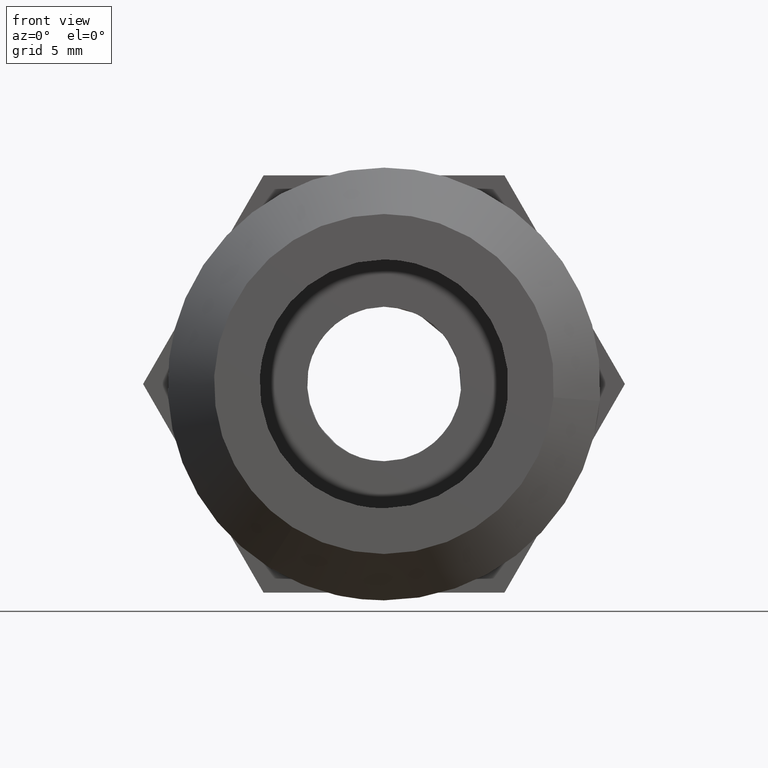
[diagram: clean part render]
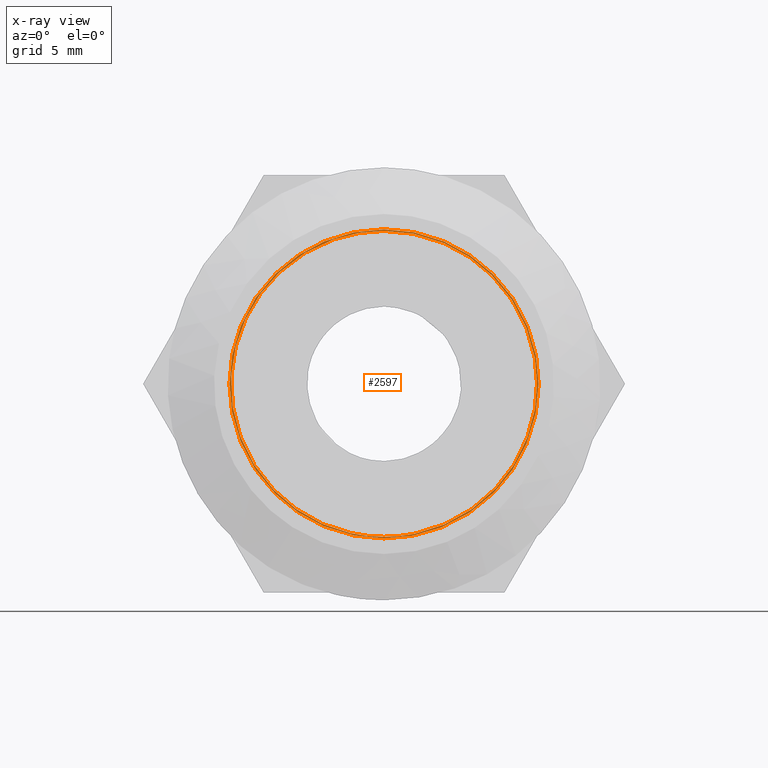
[diagram: x-ray — body ghosted, one internal face saturated and labeled with its STEP entity id]
A machine part, front view, then the same camera in x-ray: the body is ghosted and one INTERNAL B-rep face — a face not visible from any outside direction — is saturated and labeled: STEP entity #2597.
In plain terms, the highlighted face is a freeform B-spline surface patch.
Its self-contained STEP definition (entity closure, byte-faithful):
#1036=CARTESIAN_POINT('',(13.000000617466640,-9.764228942748170,-1.633965257896121));
#1037=VERTEX_POINT('',#1036);
#1043=CARTESIAN_POINT('',(13.000000617466640,0.0,-9.900000470224791));
#1044=VERTEX_POINT('',#1043);
#1045=CARTESIAN_POINT('',(13.000000617466645,-9.764228942748170,-1.633965257896120));
#1046=CARTESIAN_POINT('',(13.000000617466641,-8.380974367638796,-9.900000470224789));
#1047=CARTESIAN_POINT('',(13.000000617466640,0.0,-9.900000470224791));
#1055=(BOUNDED_CURVE()B_SPLINE_CURVE(2,(#1045,#1046,#1047),.UNSPECIFIED.,.F.,.U.)B_SPLINE_CURVE_WITH_KNOTS((3,3),(0.778400414016040,1.0),.UNSPECIFIED.)CURVE()GEOMETRIC_REPRESENTATION_ITEM()RATIONAL_B_SPLINE_CURVE((0.941013461540086,0.740379935893718,1.0))REPRESENTATION_ITEM(''));
#1056=EDGE_CURVE('',#1037,#1044,#1055,.T.);
#1058=CARTESIAN_POINT('',(13.000000617466640,2.189729719311406,-9.654796376246402));
#1059=VERTEX_POINT('',#1058);
#1060=CARTESIAN_POINT('',(13.000000617466640,0.0,-9.900000470224791));
#1061=CARTESIAN_POINT('',(13.000000617466640,1.108593733857280,-9.900000470224791));
#1062=CARTESIAN_POINT('',(13.000000617466641,2.189729719311406,-9.654796376246400));
#1070=(BOUNDED_CURVE()B_SPLINE_CURVE(2,(#1060,#1061,#1062),.UNSPECIFIED.,.F.,.U.)B_SPLINE_CURVE_WITH_KNOTS((3,3),(0.0,0.037835668916601),.UNSPECIFIED.)CURVE()GEOMETRIC_REPRESENTATION_ITEM()RATIONAL_B_SPLINE_CURVE((1.0,0.955672756580227,0.924762720408582))REPRESENTATION_ITEM(''));
#1071=EDGE_CURVE('',#1044,#1059,#1070,.T.);
#1119=CARTESIAN_POINT('',(13.000000617466640,0.0,9.900000470224791));
#1120=VERTEX_POINT('',#1119);
#1121=CARTESIAN_POINT('',(13.000000617466641,2.189729719311406,-9.654796376246400));
#1122=CARTESIAN_POINT('',(13.000000617466640,9.900000470224791,-7.906089479772318));
#1123=CARTESIAN_POINT('',(13.000000617466640,9.900000470224791,0.0));
#1124=CARTESIAN_POINT('',(13.000000617466640,9.900000470224791,9.900000470224791));
#1125=CARTESIAN_POINT('',(13.000000617466640,0.0,9.900000470224791));
#1133=(BOUNDED_CURVE()B_SPLINE_CURVE(2,(#1121,#1122,#1123,#1124,#1125),.UNSPECIFIED.,.F.,.U.)B_SPLINE_CURVE_WITH_KNOTS((3,2,3),(0.037835668916601,0.250000000000000,0.500000000000000),.UNSPECIFIED.)CURVE()GEOMETRIC_REPRESENTATION_ITEM()RATIONAL_B_SPLINE_CURVE((0.924762720408582,0.751434024606321,1.0,0.707106781186548,1.0))REPRESENTATION_ITEM(''));
#1134=EDGE_CURVE('',#1059,#1120,#1133,.T.);
#1136=CARTESIAN_POINT('',(13.000000617466640,0.0,9.900000470224791));
#1137=CARTESIAN_POINT('',(13.000000617466640,-9.900000470224791,9.900000470224791));
#1138=CARTESIAN_POINT('',(13.000000617466640,-9.900000470224791,0.0));
#1139=CARTESIAN_POINT('',(13.000000617466643,-9.900000470224791,-0.822623479506005));
#1140=CARTESIAN_POINT('',(13.000000617466645,-9.764228942748170,-1.633965257896120));
#1148=(BOUNDED_CURVE()B_SPLINE_CURVE(2,(#1136,#1137,#1138,#1139,#1140),.UNSPECIFIED.,.F.,.U.)B_SPLINE_CURVE_WITH_KNOTS((3,2,3),(0.500000000000000,0.750000000000000,0.778400414016040),.UNSPECIFIED.)CURVE()GEOMETRIC_REPRESENTATION_ITEM()RATIONAL_B_SPLINE_CURVE((1.0,0.707106781186548,1.0,0.966726845292829,0.941013461540086))REPRESENTATION_ITEM(''));
#1149=EDGE_CURVE('',#1120,#1037,#1148,.T.);
#1767=CARTESIAN_POINT('',(13.000000617466640,0.0,10.000000474974501));
#1768=VERTEX_POINT('',#1767);
#1795=CARTESIAN_POINT('',(13.000000617466640,-10.000000474974501,0.0));
#1796=VERTEX_POINT('',#1795);
#1812=CARTESIAN_POINT('',(13.000000617466640,0.0,10.000000474974501));
#1813=CARTESIAN_POINT('',(13.000000617466696,-10.000000522471860,10.000000522471860));
#1814=CARTESIAN_POINT('',(13.000000617466640,-10.000000474974501,0.0));
#1822=(BOUNDED_CURVE()B_SPLINE_CURVE(2,(#1812,#1813,#1814),.UNSPECIFIED.,.F.,.U.)CURVE()GEOMETRIC_REPRESENTATION_ITEM()QUASI_UNIFORM_CURVE()RATIONAL_B_SPLINE_CURVE((1.0,0.707106781186547,1.0))REPRESENTATION_ITEM(''));
#1823=EDGE_CURVE('',#1768,#1796,#1822,.T.);
#1844=CARTESIAN_POINT('',(13.000000617466640,10.000000474974501,0.0));
#1845=VERTEX_POINT('',#1844);
#1887=CARTESIAN_POINT('',(13.000000617466640,10.000000474974501,0.0));
#1888=CARTESIAN_POINT('',(13.000000617466696,10.000000522471943,4.142135840145907));
#1889=CARTESIAN_POINT('',(13.000000617466700,7.071068181308925,7.071068181308901));
#1890=CARTESIAN_POINT('',(13.000000617466696,4.142135840145942,10.000000522471860));
#1891=CARTESIAN_POINT('',(13.000000617466640,0.0,10.000000474974501));
#1899=(BOUNDED_CURVE()B_SPLINE_CURVE(2,(#1887,#1888,#1889,#1890,#1891),.UNSPECIFIED.,.F.,.U.)B_SPLINE_CURVE_WITH_KNOTS((3,2,3),(0.0,0.500000000000000,1.0),.UNSPECIFIED.)CURVE()GEOMETRIC_REPRESENTATION_ITEM()RATIONAL_B_SPLINE_CURVE((1.0,0.923879532511286,1.0,0.923879532511286,1.0))REPRESENTATION_ITEM(''));
#1900=EDGE_CURVE('',#1845,#1768,#1899,.T.);
#1921=CARTESIAN_POINT('',(13.000000617466640,8.500145E-014,-10.000000474974501));
#1922=VERTEX_POINT('',#1921);
#1964=CARTESIAN_POINT('',(13.000000617466640,8.500145E-014,-10.000000474974501));
#1965=CARTESIAN_POINT('',(13.000000617466696,10.000000522471904,-10.000000522471819));
#1966=CARTESIAN_POINT('',(13.000000617466640,10.000000474974501,0.0));
#1974=(BOUNDED_CURVE()B_SPLINE_CURVE(2,(#1964,#1965,#1966),.UNSPECIFIED.,.F.,.U.)CURVE()GEOMETRIC_REPRESENTATION_ITEM()QUASI_UNIFORM_CURVE()RATIONAL_B_SPLINE_CURVE((1.0,0.707106781186547,1.0))REPRESENTATION_ITEM(''));
#1975=EDGE_CURVE('',#1922,#1845,#1974,.T.);
#2037=CARTESIAN_POINT('',(13.000000617466640,-10.000000474974501,0.0));
#2038=CARTESIAN_POINT('',(13.000000617466698,-10.000000522471920,-10.000000522471920));
#2039=CARTESIAN_POINT('',(13.000000617466640,8.500145E-014,-10.000000474974501));
#2047=(BOUNDED_CURVE()B_SPLINE_CURVE(2,(#2037,#2038,#2039),.UNSPECIFIED.,.F.,.U.)CURVE()GEOMETRIC_REPRESENTATION_ITEM()QUASI_UNIFORM_CURVE()RATIONAL_B_SPLINE_CURVE((1.0,0.707106781186548,1.0))REPRESENTATION_ITEM(''));
#2048=EDGE_CURVE('',#1796,#1922,#2047,.T.);
#2580=CARTESIAN_POINT('',(13.000000617466700,-10.999000036715120,-10.999000036715120));
#2581=CARTESIAN_POINT('',(13.000000617466700,10.998999500273291,-10.999000036715120));
#2582=CARTESIAN_POINT('',(13.000000617466700,-10.999000036715120,10.998999500273291));
#2583=CARTESIAN_POINT('',(13.000000617466700,10.998999500273291,10.998999500273291));
#2584=B_SPLINE_SURFACE_WITH_KNOTS('',1,1,((#2580,#2582),(#2581,#2583)),.UNSPECIFIED.,.F.,.F.,.U.,(2,2),(2,2),(0.0,21.997999536988409),(0.0,21.997999536988409),.UNSPECIFIED.);
#2585=ORIENTED_EDGE('',*,*,#1823,.T.);
#2586=ORIENTED_EDGE('',*,*,#2048,.T.);
#2587=ORIENTED_EDGE('',*,*,#1975,.T.);
#2588=ORIENTED_EDGE('',*,*,#1900,.T.);
#2589=EDGE_LOOP('',(#2585,#2586,#2587,#2588));
#2590=FACE_OUTER_BOUND('',#2589,.T.);
#2591=ORIENTED_EDGE('',*,*,#1149,.F.);
#2592=ORIENTED_EDGE('',*,*,#1134,.F.);
#2593=ORIENTED_EDGE('',*,*,#1071,.F.);
#2594=ORIENTED_EDGE('',*,*,#1056,.F.);
#2595=EDGE_LOOP('',(#2591,#2592,#2593,#2594));
#2596=FACE_BOUND('',#2595,.T.);
#2597=ADVANCED_FACE('',(#2590,#2596),#2584,.T.);